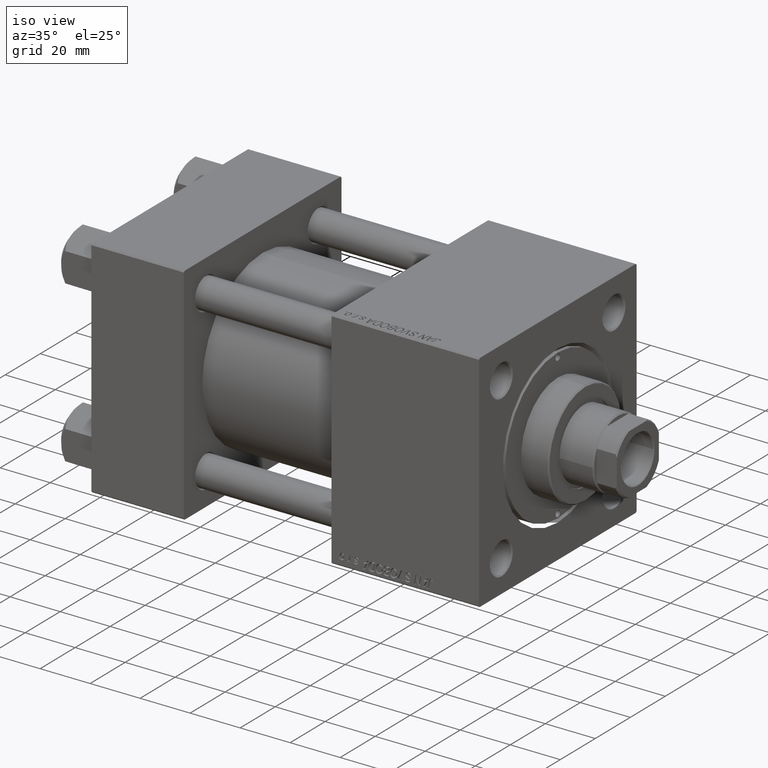
[diagram: clean part render]
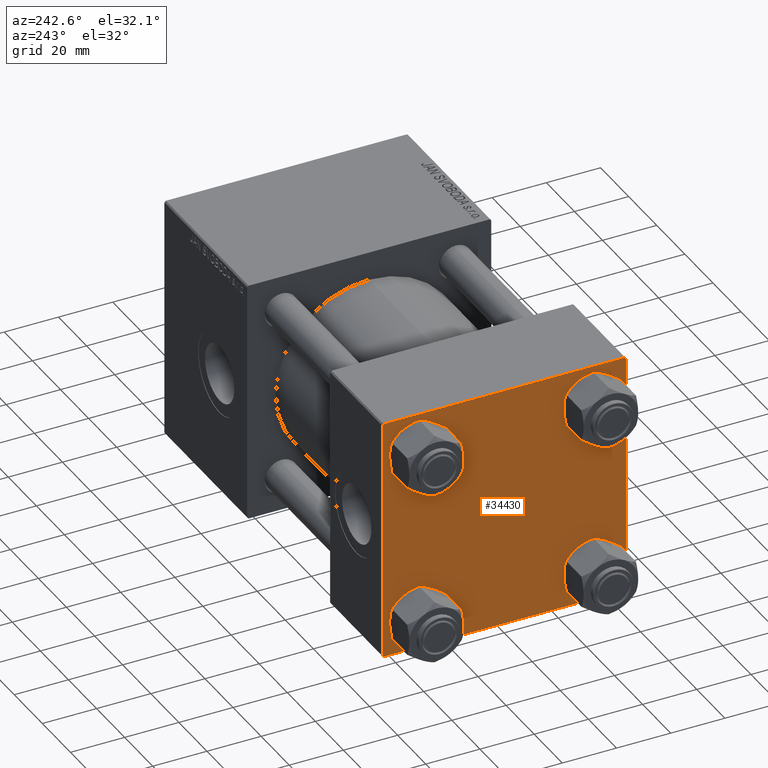
[diagram: tour spotlight — one face highlighted and labeled with its STEP entity id]
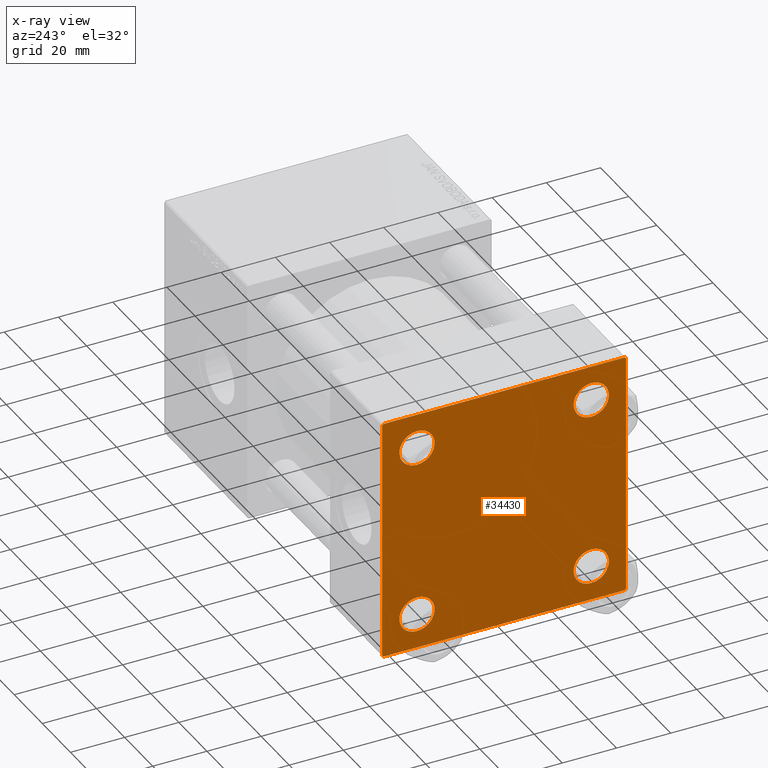
[diagram: x-ray of the same camera — body ghosted, this tour face saturated]
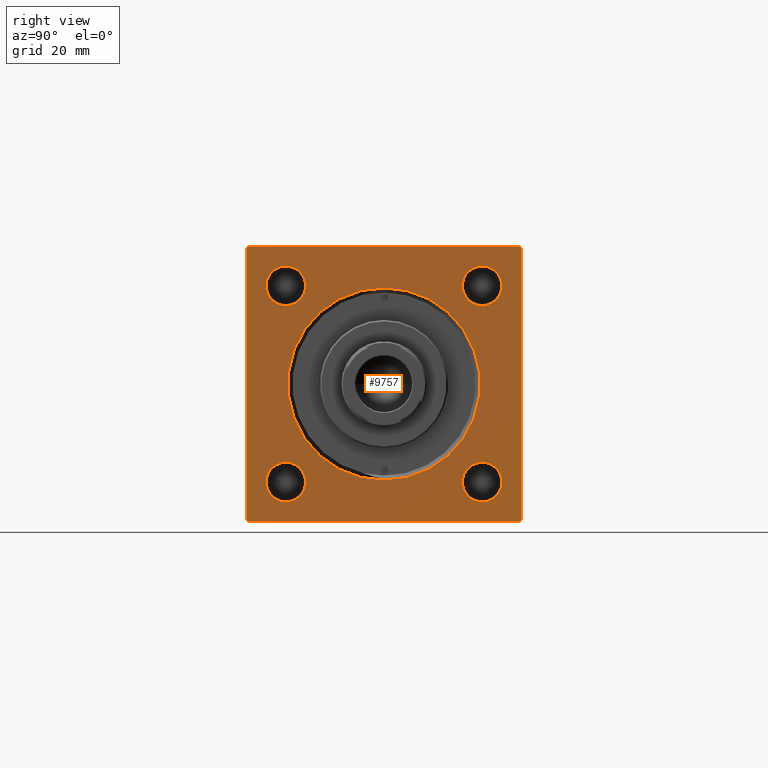
[diagram: tour spotlight — one face highlighted and labeled with its STEP entity id]
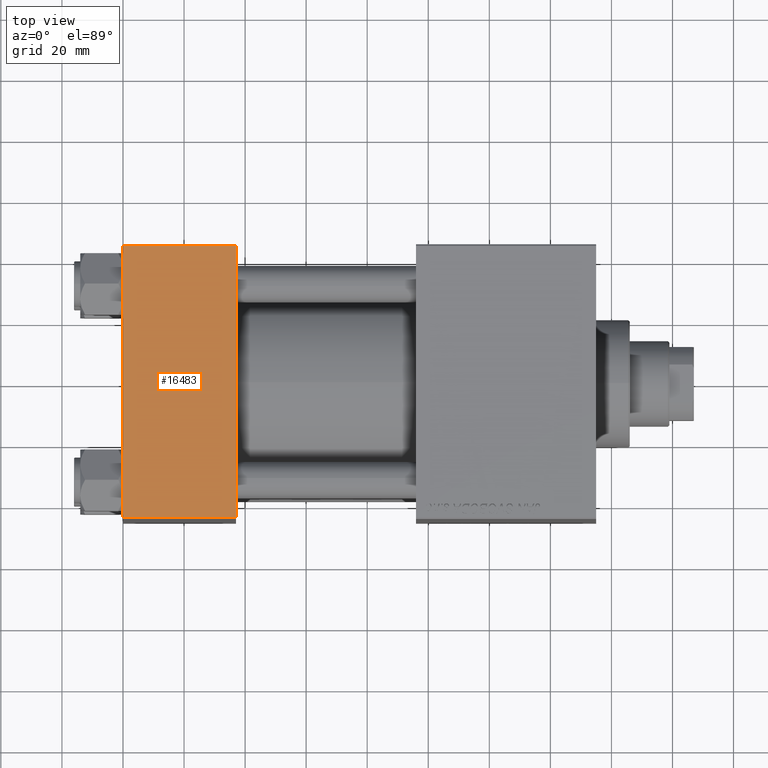
[diagram: tour spotlight — one face highlighted and labeled with its STEP entity id]
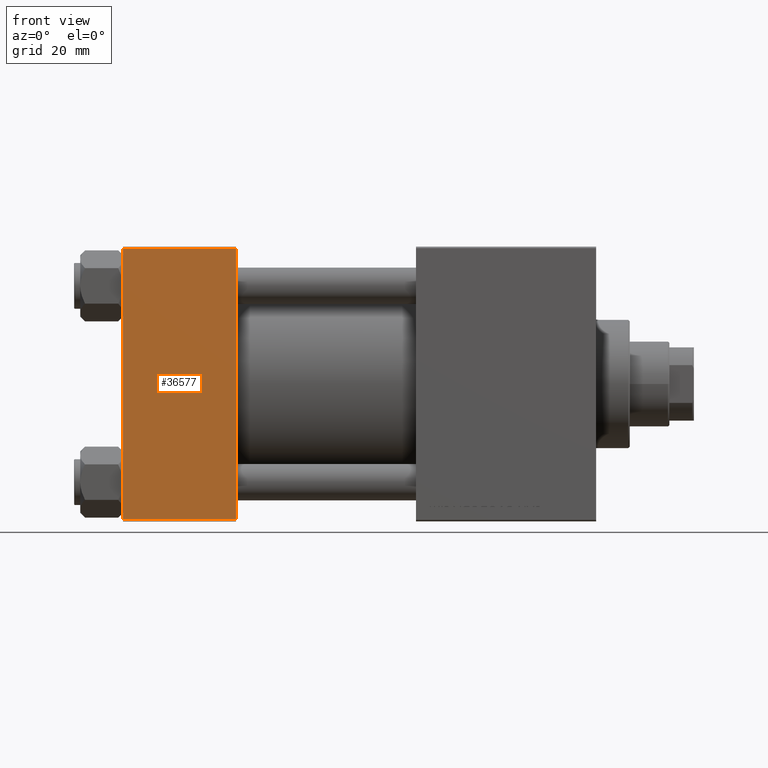
[diagram: tour spotlight — one face highlighted and labeled with its STEP entity id]
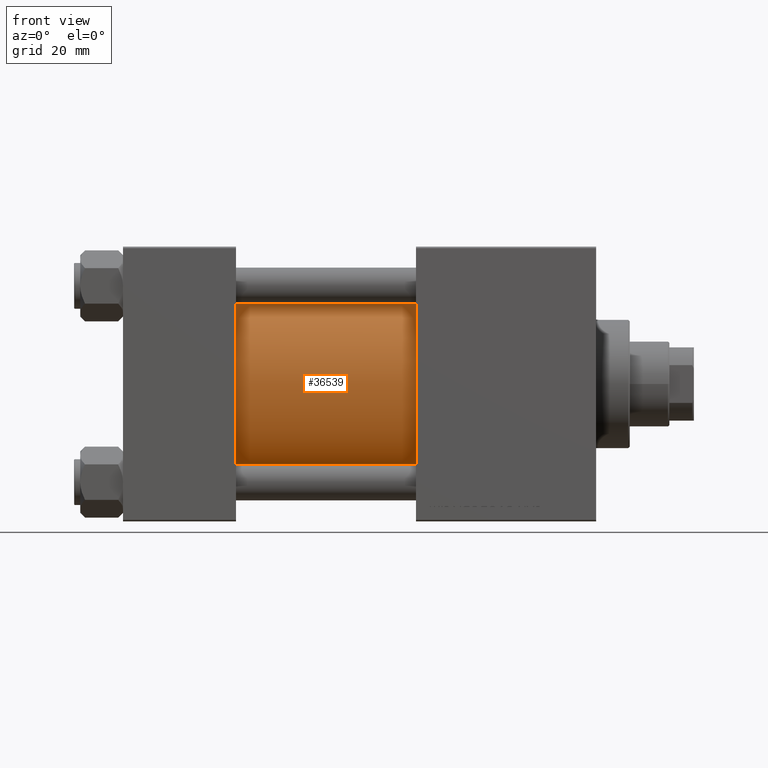
[diagram: tour spotlight — one face highlighted and labeled with its STEP entity id]
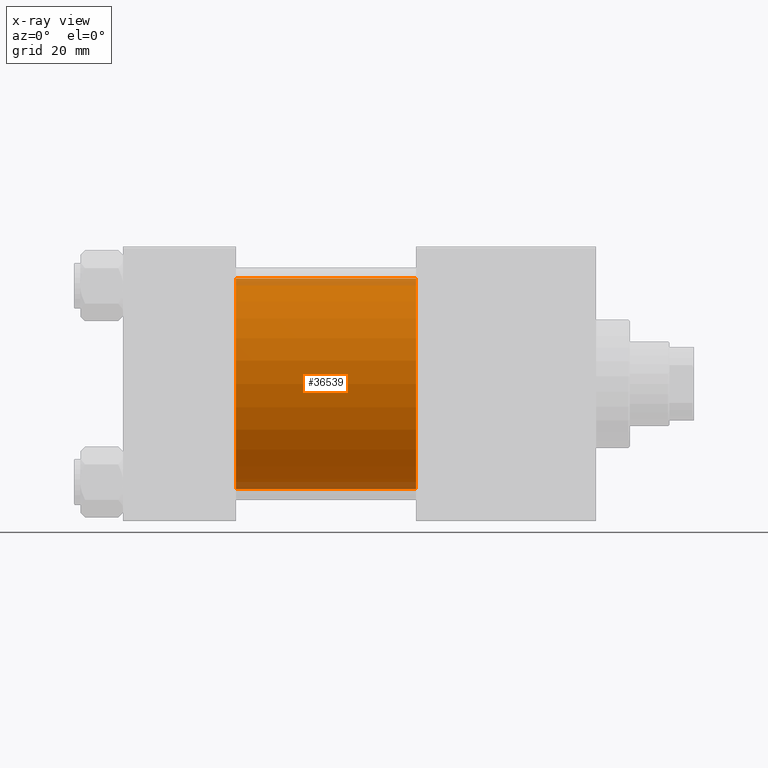
[diagram: x-ray of the same camera — body ghosted, this tour face saturated]
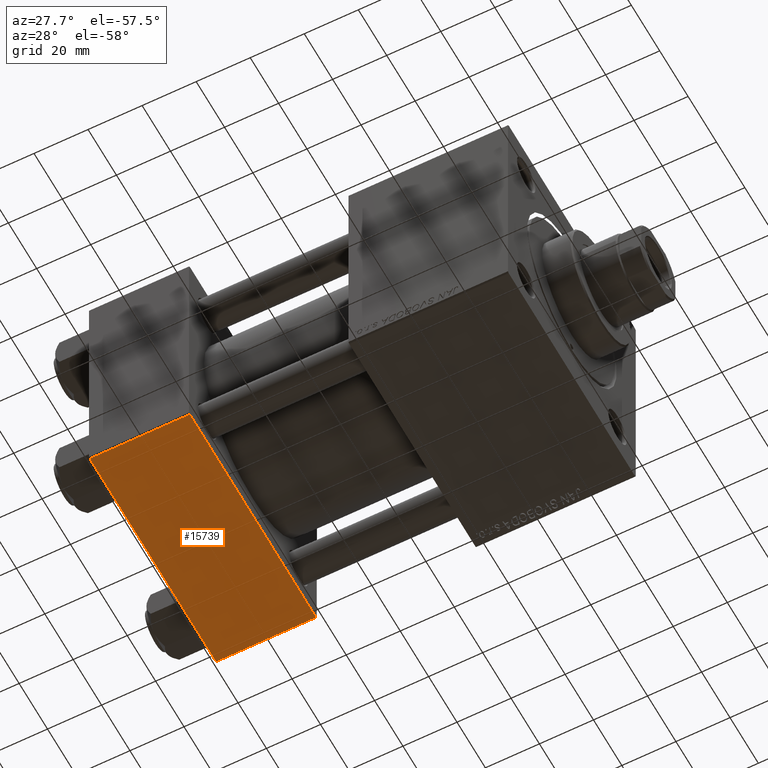
[diagram: tour spotlight — one face highlighted and labeled with its STEP entity id]
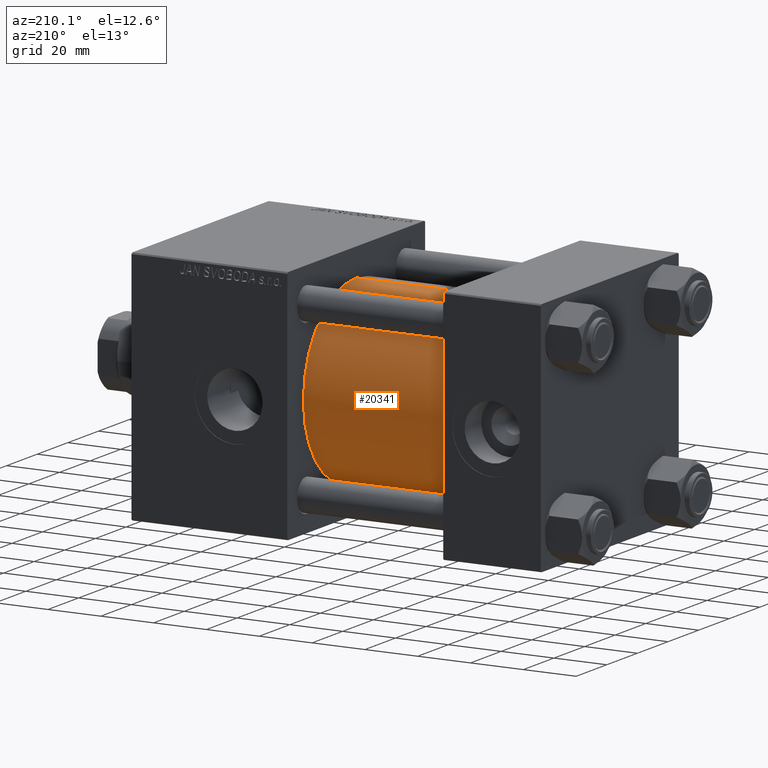
[diagram: tour spotlight — one face highlighted and labeled with its STEP entity id]
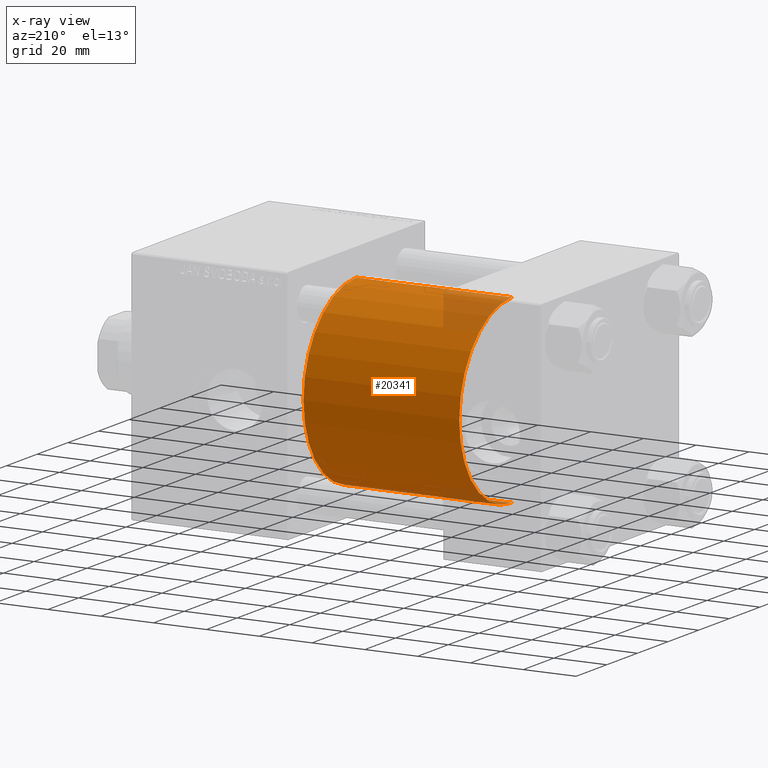
[diagram: x-ray of the same camera — body ghosted, this tour face saturated]
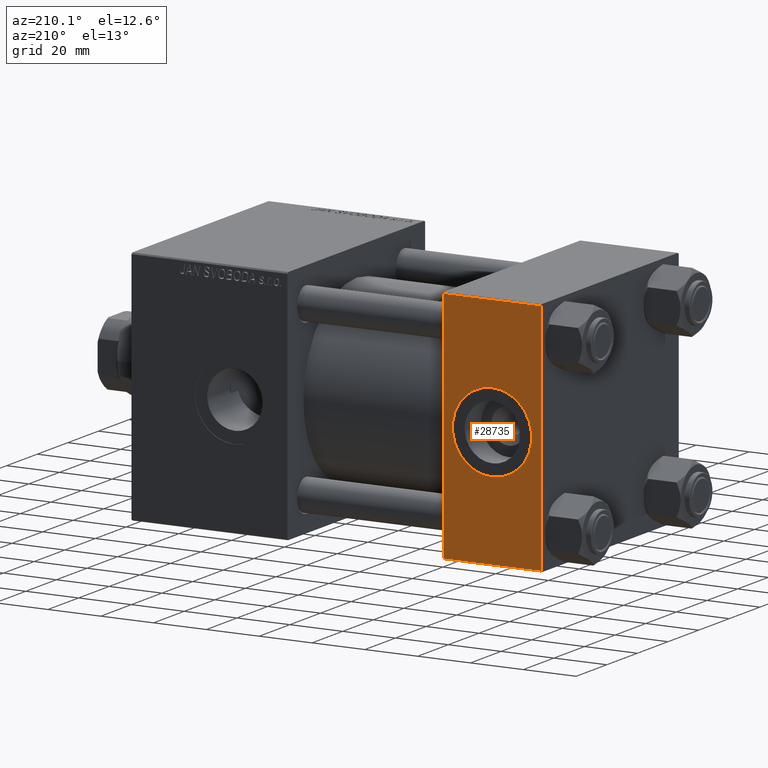
[diagram: tour spotlight — one face highlighted and labeled with its STEP entity id]
A machine part: a face-by-face anatomy tour. The part has 1155 B-rep faces; the first image is the clean iso view, then the 8 largest visible faces are spotlighted one at a time (largest first), each with its STEP entity span.

Face 1 — auxiliary view, entity #34430. An x-ray twin of the same camera follows (body ghosted, this face saturated) — the face is partly hidden behind the body. In plain terms, the highlighted planar face has unit normal (-1, 0, 0).
Definition (entity closure, byte-faithful):
#350 = CIRCLE ( 'NONE', #13330, 6.499999999999977796 ) ;
#530 = DIRECTION ( 'NONE',  ( 0.000000000000000000, 7.709882115452476934E-17, -1.000000000000000000 ) ) ;
#1009 = DIRECTION ( 'NONE',  ( 0.000000000000000000, 0.000000000000000000, 1.000000000000000000 ) ) ;
#1986 = DIRECTION ( 'NONE',  ( 0.000000000000000000, 0.000000000000000000, 1.000000000000000000 ) ) ;
#2035 = ORIENTED_EDGE ( 'NONE', *, *, #27460, .T. ) ;
#3059 = DIRECTION ( 'NONE',  ( -1.000000000000000000, 0.000000000000000000, -0.000000000000000000 ) ) ;
#3607 = EDGE_CURVE ( 'NONE', #18046, #36002, #5492, .T. ) ;
#4317 = CIRCLE ( 'NONE', #32774, 6.499999999999977796 ) ;
#4428 = VERTEX_POINT ( 'NONE', #47068 ) ;
#4663 = CARTESIAN_POINT ( 'NONE',  ( 0.000000000000000000, -45.00000000000000000, -44.49999999999995737 ) ) ;
#4747 = ORIENTED_EDGE ( 'NONE', *, *, #35121, .T. ) ;
#4823 = DIRECTION ( 'NONE',  ( 1.000000000000000000, -0.000000000000000000, 0.000000000000000000 ) ) ;
#4841 = EDGE_CURVE ( 'NONE', #33063, #45876, #41621, .T. ) ;
#5072 = DIRECTION ( 'NONE',  ( 0.000000000000000000, 0.000000000000000000, 1.000000000000000000 ) ) ;
#5492 = LINE ( 'NONE', #28424, #30434 ) ;
#5863 = CARTESIAN_POINT ( 'NONE',  ( 0.000000000000000000, 44.99999999999998579, -44.49999999999995737 ) ) ;
#6571 = CIRCLE ( 'NONE', #35045, 6.499999999999977796 ) ;
#6603 = AXIS2_PLACEMENT_3D ( 'NONE', #23504, #24005, #31644 ) ;
#6874 = FACE_BOUND ( 'NONE', #12646, .T. ) ;
#8395 = CARTESIAN_POINT ( 'NONE',  ( 0.000000000000000000, 32.14999999999999147, 32.15000000000000568 ) ) ;
#8550 = VERTEX_POINT ( 'NONE', #33020 ) ;
#9015 = ORIENTED_EDGE ( 'NONE', *, *, #16313, .T. ) ;
#10144 = CARTESIAN_POINT ( 'NONE',  ( 0.000000000000000000, 32.14999999999999147, -32.15000000000000568 ) ) ;
#10441 = FACE_BOUND ( 'NONE', #29006, .T. ) ;
#11243 = CARTESIAN_POINT ( 'NONE',  ( 0.000000000000000000, -45.00000000000000711, 45.00000000000000000 ) ) ;
#11345 = EDGE_CURVE ( 'NONE', #14311, #13397, #44419, .T. ) ;
#12053 = CARTESIAN_POINT ( 'NONE',  ( 0.000000000000000000, 44.74999999999998579, -44.74999999999998579 ) ) ;
#12646 = EDGE_LOOP ( 'NONE', ( #4747, #32186 ) ) ;
#12846 = CARTESIAN_POINT ( 'NONE',  ( 0.000000000000000000, 32.14999999999999147, 38.64999999999999147 ) ) ;
#13330 = AXIS2_PLACEMENT_3D ( 'NONE', #8395, #4823, #5072 ) ;
#13397 = VERTEX_POINT ( 'NONE', #40564 ) ;
#13505 = ORIENTED_EDGE ( 'NONE', *, *, #41323, .F. ) ;
#13955 = VECTOR ( 'NONE', #41879, 1000.000000000000000 ) ;
#14311 = VERTEX_POINT ( 'NONE', #46359 ) ;
#14781 = CARTESIAN_POINT ( 'NONE',  ( 0.000000000000000000, 0.000000000000000000, 0.000000000000000000 ) ) ;
#15038 = VERTEX_POINT ( 'NONE', #5863 ) ;
#15058 = CARTESIAN_POINT ( 'NONE',  ( 0.000000000000000000, -32.14999999999997726, -25.65000000000003411 ) ) ;
#15636 = LINE ( 'NONE', #12053, #49835 ) ;
#16111 = AXIS2_PLACEMENT_3D ( 'NONE', #34742, #30440, #38809 ) ;
#16281 = ORIENTED_EDGE ( 'NONE', *, *, #29362, .T. ) ;
#16313 = EDGE_CURVE ( 'NONE', #25687, #45167, #20984, .T. ) ;
#16429 = VECTOR ( 'NONE', #530, 1000.000000000000000 ) ;
#16434 = DIRECTION ( 'NONE',  ( 0.000000000000000000, 0.000000000000000000, 1.000000000000000000 ) ) ;
#16780 = EDGE_LOOP ( 'NONE', ( #24059, #9015 ) ) ;
#17676 = VERTEX_POINT ( 'NONE', #47857 ) ;
#17938 = LINE ( 'NONE', #25833, #13955 ) ;
#18046 = VERTEX_POINT ( 'NONE', #20232 ) ;
#18355 = PLANE ( 'NONE',  #38180 ) ;
#18956 = CARTESIAN_POINT ( 'NONE',  ( 0.000000000000000000, -32.14999999999997726, 32.15000000000001279 ) ) ;
#19372 = EDGE_CURVE ( 'NONE', #8550, #45876, #42287, .T. ) ;
#20232 = CARTESIAN_POINT ( 'NONE',  ( 0.000000000000000000, -44.49999999999995737, -45.00000000000000000 ) ) ;
#20510 = DIRECTION ( 'NONE',  ( 0.000000000000000000, 0.7071067811865474617, -0.7071067811865474617 ) ) ;
#20984 = CIRCLE ( 'NONE', #16111, 6.499999999999977796 ) ;
#22086 = LINE ( 'NONE', #41951, #43412 ) ;
#22427 = FACE_BOUND ( 'NONE', #37718, .T. ) ;
#23460 = LINE ( 'NONE', #11243, #16429 ) ;
#23504 = CARTESIAN_POINT ( 'NONE',  ( 0.000000000000000000, 32.14999999999999147, 32.15000000000000568 ) ) ;
#24005 = DIRECTION ( 'NONE',  ( 1.000000000000000000, -0.000000000000000000, 0.000000000000000000 ) ) ;
#24059 = ORIENTED_EDGE ( 'NONE', *, *, #48297, .T. ) ;
#24358 = AXIS2_PLACEMENT_3D ( 'NONE', #41348, #29639, #45179 ) ;
#24447 = DIRECTION ( 'NONE',  ( 1.000000000000000000, -0.000000000000000000, 0.000000000000000000 ) ) ;
#24899 = CARTESIAN_POINT ( 'NONE',  ( 0.000000000000000000, 44.49999999999998579, 45.00000000000001421 ) ) ;
#25111 = DIRECTION ( 'NONE',  ( 0.000000000000000000, -0.7071067811865474617, 0.7071067811865474617 ) ) ;
#25435 = DIRECTION ( 'NONE',  ( 1.000000000000000000, -0.000000000000000000, 0.000000000000000000 ) ) ;
#25519 = CIRCLE ( 'NONE', #39329, 6.499999999999977796 ) ;
#25687 = VERTEX_POINT ( 'NONE', #44320 ) ;
#25833 = CARTESIAN_POINT ( 'NONE',  ( 0.000000000000000000, 44.99999999999998579, 45.00000000000001421 ) ) ;
#27460 = EDGE_CURVE ( 'NONE', #4428, #45373, #6571, .T. ) ;
#27549 = ORIENTED_EDGE ( 'NONE', *, *, #19372, .T. ) ;
#28181 = ORIENTED_EDGE ( 'NONE', *, *, #48772, .T. ) ;
#28214 = CARTESIAN_POINT ( 'NONE',  ( 0.000000000000000000, 32.14999999999999147, -25.65000000000002700 ) ) ;
#28424 = CARTESIAN_POINT ( 'NONE',  ( 0.000000000000000000, -44.74999999999998579, -44.74999999999998579 ) ) ;
#28577 = CIRCLE ( 'NONE', #6603, 6.499999999999977796 ) ;
#29006 = EDGE_LOOP ( 'NONE', ( #16281, #35438 ) ) ;
#29298 = EDGE_CURVE ( 'NONE', #43318, #15038, #17938, .T. ) ;
#29362 = EDGE_CURVE ( 'NONE', #49003, #17676, #28577, .T. ) ;
#29639 = DIRECTION ( 'NONE',  ( 1.000000000000000000, -0.000000000000000000, 0.000000000000000000 ) ) ;
#29827 = FACE_BOUND ( 'NONE', #16780, .T. ) ;
#30238 = DIRECTION ( 'NONE',  ( 1.000000000000000000, -0.000000000000000000, 0.000000000000000000 ) ) ;
#30434 = VECTOR ( 'NONE', #25111, 1000.000000000000114 ) ;
#30440 = DIRECTION ( 'NONE',  ( 1.000000000000000000, -0.000000000000000000, 0.000000000000000000 ) ) ;
#30768 = ORIENTED_EDGE ( 'NONE', *, *, #3607, .T. ) ;
#31355 = CARTESIAN_POINT ( 'NONE',  ( 0.000000000000000000, -44.49999999999995737, 45.00000000000000000 ) ) ;
#31644 = DIRECTION ( 'NONE',  ( 0.000000000000000000, 0.000000000000000000, 1.000000000000000000 ) ) ;
#31687 = ORIENTED_EDGE ( 'NONE', *, *, #41956, .T. ) ;
#31805 = ORIENTED_EDGE ( 'NONE', *, *, #4841, .F. ) ;
#32186 = ORIENTED_EDGE ( 'NONE', *, *, #11345, .T. ) ;
#32460 = LINE ( 'NONE', #36034, #45867 ) ;
#32774 = AXIS2_PLACEMENT_3D ( 'NONE', #47648, #24447, #1009 ) ;
#33020 = CARTESIAN_POINT ( 'NONE',  ( 0.000000000000000000, -45.00000000000000711, 44.49999999999997158 ) ) ;
#33063 = VERTEX_POINT ( 'NONE', #24899 ) ;
#34430 = ADVANCED_FACE ( 'NONE', ( #6874, #29827, #22427, #10441, #44857 ), #18355, .T. ) ;
#34641 = DIRECTION ( 'NONE',  ( -0.000000000000000000, 0.7071067811865425767, 0.7071067811865524577 ) ) ;
#34742 = CARTESIAN_POINT ( 'NONE',  ( 0.000000000000000000, -32.14999999999997726, -32.15000000000001279 ) ) ;
#35045 = AXIS2_PLACEMENT_3D ( 'NONE', #10144, #25435, #1986 ) ;
#35121 = EDGE_CURVE ( 'NONE', #13397, #14311, #50406, .T. ) ;
#35438 = ORIENTED_EDGE ( 'NONE', *, *, #47505, .T. ) ;
#36002 = VERTEX_POINT ( 'NONE', #4663 ) ;
#36034 = CARTESIAN_POINT ( 'NONE',  ( 0.000000000000000000, 44.74999999999999289, 44.74999999999999289 ) ) ;
#36129 = CARTESIAN_POINT ( 'NONE',  ( 0.000000000000000000, 44.99999999999998579, 44.50000000000001421 ) ) ;
#37616 = DIRECTION ( 'NONE',  ( 0.000000000000000000, -1.000000000000000000, -1.541976423090495633E-16 ) ) ;
#37718 = EDGE_LOOP ( 'NONE', ( #49773, #2035 ) ) ;
#37791 = CARTESIAN_POINT ( 'NONE',  ( 0.000000000000000000, 44.99999999999998579, 45.00000000000001421 ) ) ;
#37805 = DIRECTION ( 'NONE',  ( 0.000000000000000000, 0.000000000000000000, 1.000000000000000000 ) ) ;
#38180 = AXIS2_PLACEMENT_3D ( 'NONE', #14781, #3059, #45368 ) ;
#38277 = VERTEX_POINT ( 'NONE', #39806 ) ;
#38497 = ORIENTED_EDGE ( 'NONE', *, *, #29298, .T. ) ;
#38809 = DIRECTION ( 'NONE',  ( 0.000000000000000000, 0.000000000000000000, 1.000000000000000000 ) ) ;
#39329 = AXIS2_PLACEMENT_3D ( 'NONE', #49596, #30238, #16434 ) ;
#39806 = CARTESIAN_POINT ( 'NONE',  ( 0.000000000000000000, 44.49999999999998579, -44.99999999999998579 ) ) ;
#40331 = AXIS2_PLACEMENT_3D ( 'NONE', #18956, #49787, #37805 ) ;
#40564 = CARTESIAN_POINT ( 'NONE',  ( 0.000000000000000000, -32.14999999999997726, 38.65000000000003411 ) ) ;
#41323 = EDGE_CURVE ( 'NONE', #8550, #36002, #23460, .T. ) ;
#41348 = CARTESIAN_POINT ( 'NONE',  ( 0.000000000000000000, -32.14999999999997726, 32.15000000000001279 ) ) ;
#41621 = LINE ( 'NONE', #37791, #45925 ) ;
#41879 = DIRECTION ( 'NONE',  ( 0.000000000000000000, 0.000000000000000000, -1.000000000000000000 ) ) ;
#41951 = CARTESIAN_POINT ( 'NONE',  ( 0.000000000000000000, 44.99999999999998579, -44.99999999999998579 ) ) ;
#41956 = EDGE_CURVE ( 'NONE', #15038, #38277, #15636, .T. ) ;
#42287 = LINE ( 'NONE', #49696, #43020 ) ;
#43020 = VECTOR ( 'NONE', #34641, 1000.000000000000114 ) ;
#43318 = VERTEX_POINT ( 'NONE', #36129 ) ;
#43392 = DIRECTION ( 'NONE',  ( -0.000000000000000000, -0.7071067811865474617, -0.7071067811865474617 ) ) ;
#43412 = VECTOR ( 'NONE', #37616, 1000.000000000000000 ) ;
#44320 = CARTESIAN_POINT ( 'NONE',  ( 0.000000000000000000, -32.14999999999997726, -38.64999999999999147 ) ) ;
#44419 = CIRCLE ( 'NONE', #40331, 6.500000000000019540 ) ;
#44857 = FACE_OUTER_BOUND ( 'NONE', #46132, .T. ) ;
#45167 = VERTEX_POINT ( 'NONE', #15058 ) ;
#45179 = DIRECTION ( 'NONE',  ( 0.000000000000000000, 0.000000000000000000, 1.000000000000000000 ) ) ;
#45368 = DIRECTION ( 'NONE',  ( -0.000000000000000000, 0.000000000000000000, 1.000000000000000000 ) ) ;
#45373 = VERTEX_POINT ( 'NONE', #28214 ) ;
#45867 = VECTOR ( 'NONE', #20510, 1000.000000000000114 ) ;
#45876 = VERTEX_POINT ( 'NONE', #31355 ) ;
#45925 = VECTOR ( 'NONE', #49519, 1000.000000000000000 ) ;
#46132 = EDGE_LOOP ( 'NONE', ( #38497, #31687, #28181, #30768, #13505, #27549, #31805, #48118 ) ) ;
#46359 = CARTESIAN_POINT ( 'NONE',  ( 0.000000000000000000, -32.14999999999997726, 25.64999999999999147 ) ) ;
#47068 = CARTESIAN_POINT ( 'NONE',  ( 0.000000000000000000, 32.14999999999999147, -38.64999999999998437 ) ) ;
#47505 = EDGE_CURVE ( 'NONE', #17676, #49003, #350, .T. ) ;
#47648 = CARTESIAN_POINT ( 'NONE',  ( 0.000000000000000000, -32.14999999999997726, -32.15000000000001279 ) ) ;
#47857 = CARTESIAN_POINT ( 'NONE',  ( 0.000000000000000000, 32.14999999999999147, 25.65000000000002700 ) ) ;
#48118 = ORIENTED_EDGE ( 'NONE', *, *, #48994, .T. ) ;
#48297 = EDGE_CURVE ( 'NONE', #45167, #25687, #4317, .T. ) ;
#48772 = EDGE_CURVE ( 'NONE', #38277, #18046, #22086, .T. ) ;
#48803 = EDGE_CURVE ( 'NONE', #45373, #4428, #25519, .T. ) ;
#48994 = EDGE_CURVE ( 'NONE', #33063, #43318, #32460, .T. ) ;
#49003 = VERTEX_POINT ( 'NONE', #12846 ) ;
#49519 = DIRECTION ( 'NONE',  ( 0.000000000000000000, -1.000000000000000000, -1.541976423090495387E-16 ) ) ;
#49596 = CARTESIAN_POINT ( 'NONE',  ( 0.000000000000000000, 32.14999999999999147, -32.15000000000000568 ) ) ;
#49696 = CARTESIAN_POINT ( 'NONE',  ( -0.000000000000000000, -44.75000000000029843, 44.74999999999967315 ) ) ;
#49773 = ORIENTED_EDGE ( 'NONE', *, *, #48803, .T. ) ;
#49787 = DIRECTION ( 'NONE',  ( 1.000000000000000000, -0.000000000000000000, 0.000000000000000000 ) ) ;
#49835 = VECTOR ( 'NONE', #43392, 1000.000000000000114 ) ;
#50406 = CIRCLE ( 'NONE', #24358, 6.500000000000019540 ) ;

Face 2 — right view, entity #9757. In plain terms, the highlighted planar face has unit normal (-1, 0, 0).
Definition (entity closure, byte-faithful):
#564 = DIRECTION ( 'NONE',  ( -1.000000000000000000, -0.000000000000000000, -0.000000000000000000 ) ) ;
#581 = DIRECTION ( 'NONE',  ( 0.000000000000000000, -0.7071067811865474617, 0.7071067811865474617 ) ) ;
#609 = ORIENTED_EDGE ( 'NONE', *, *, #33079, .T. ) ;
#1350 = CARTESIAN_POINT ( 'NONE',  ( 155.0000000000000000, -32.14999999999999147, 32.14999999999999147 ) ) ;
#2987 = VERTEX_POINT ( 'NONE', #17342 ) ;
#3400 = LINE ( 'NONE', #30667, #43927 ) ;
#3795 = ORIENTED_EDGE ( 'NONE', *, *, #15768, .F. ) ;
#4308 = CARTESIAN_POINT ( 'NONE',  ( 155.0000000000000000, 0.000000000000000000, 0.000000000000000000 ) ) ;
#4549 = CIRCLE ( 'NONE', #15974, 6.500000000000033751 ) ;
#4948 = LINE ( 'NONE', #6454, #43061 ) ;
#5546 = VECTOR ( 'NONE', #45113, 1000.000000000000114 ) ;
#5607 = CARTESIAN_POINT ( 'NONE',  ( 155.0000000000000000, -45.00000000000000000, 44.49999999999995737 ) ) ;
#5626 = AXIS2_PLACEMENT_3D ( 'NONE', #8477, #43383, #40557 ) ;
#5694 = VECTOR ( 'NONE', #30045, 1000.000000000000000 ) ;
#5893 = DIRECTION ( 'NONE',  ( -1.000000000000000000, -0.000000000000000000, -0.000000000000000000 ) ) ;
#5918 = ORIENTED_EDGE ( 'NONE', *, *, #40810, .T. ) ;
#6056 = ORIENTED_EDGE ( 'NONE', *, *, #48646, .T. ) ;
#6404 = DIRECTION ( 'NONE',  ( -1.000000000000000000, -0.000000000000000000, -0.000000000000000000 ) ) ;
#6454 = CARTESIAN_POINT ( 'NONE',  ( 155.0000000000000000, 45.00000000000001421, -45.00000000000000000 ) ) ;
#6593 = LINE ( 'NONE', #22403, #5694 ) ;
#6769 = CARTESIAN_POINT ( 'NONE',  ( 155.0000000000000000, -32.14999999999999147, 32.14999999999999147 ) ) ;
#6829 = EDGE_LOOP ( 'NONE', ( #25221, #40569 ) ) ;
#7273 = VECTOR ( 'NONE', #36465, 1000.000000000000114 ) ;
#7596 = FACE_BOUND ( 'NONE', #39200, .T. ) ;
#7656 = AXIS2_PLACEMENT_3D ( 'NONE', #4308, #16034, #27747 ) ;
#7971 = CARTESIAN_POINT ( 'NONE',  ( 155.0000000000000000, 44.49999999999998579, 45.00000000000000000 ) ) ;
#8107 = VERTEX_POINT ( 'NONE', #44940 ) ;
#8477 = CARTESIAN_POINT ( 'NONE',  ( 155.0000000000000000, -32.15000000000001279, -32.15000000000000568 ) ) ;
#9182 = CIRCLE ( 'NONE', #37666, 31.50000000000000000 ) ;
#9214 = LINE ( 'NONE', #20938, #7273 ) ;
#9272 = DIRECTION ( 'NONE',  ( 0.000000000000000000, -1.000000000000000000, 0.000000000000000000 ) ) ;
#9644 = LINE ( 'NONE', #25451, #45295 ) ;
#9757 = ADVANCED_FACE ( 'NONE', ( #14747, #7596, #50400, #11172, #30793, #42498 ), #33851, .F. ) ;
#10010 = DIRECTION ( 'NONE',  ( 0.000000000000000000, 0.000000000000000000, 1.000000000000000000 ) ) ;
#10501 = ORIENTED_EDGE ( 'NONE', *, *, #31549, .T. ) ;
#10593 = DIRECTION ( 'NONE',  ( -1.000000000000000000, -0.000000000000000000, -0.000000000000000000 ) ) ;
#11169 = VECTOR ( 'NONE', #47695, 1000.000000000000000 ) ;
#11172 = FACE_BOUND ( 'NONE', #38131, .T. ) ;
#11200 = ORIENTED_EDGE ( 'NONE', *, *, #31210, .F. ) ;
#11376 = ORIENTED_EDGE ( 'NONE', *, *, #50320, .T. ) ;
#11433 = VERTEX_POINT ( 'NONE', #36159 ) ;
#11546 = AXIS2_PLACEMENT_3D ( 'NONE', #1350, #13832, #10010 ) ;
#12322 = EDGE_CURVE ( 'NONE', #45362, #49634, #47470, .T. ) ;
#12508 = VERTEX_POINT ( 'NONE', #28594 ) ;
#12588 = EDGE_CURVE ( 'NONE', #45684, #48099, #4549, .T. ) ;
#12665 = DIRECTION ( 'NONE',  ( -1.000000000000000000, -0.000000000000000000, -0.000000000000000000 ) ) ;
#13525 = EDGE_CURVE ( 'NONE', #49634, #28240, #9644, .T. ) ;
#13704 = EDGE_LOOP ( 'NONE', ( #49011, #40283 ) ) ;
#13832 = DIRECTION ( 'NONE',  ( -1.000000000000000000, -0.000000000000000000, -0.000000000000000000 ) ) ;
#14747 = FACE_BOUND ( 'NONE', #13704, .T. ) ;
#14820 = CARTESIAN_POINT ( 'NONE',  ( 155.0000000000000000, -32.15000000000001279, -32.15000000000000568 ) ) ;
#14875 = EDGE_CURVE ( 'NONE', #11433, #29702, #33090, .T. ) ;
#15521 = CARTESIAN_POINT ( 'NONE',  ( 155.0000000000000000, 44.49999999999998579, 45.00000000000000000 ) ) ;
#15768 = EDGE_CURVE ( 'NONE', #45362, #17521, #32137, .T. ) ;
#15898 = VERTEX_POINT ( 'NONE', #19369 ) ;
#15974 = AXIS2_PLACEMENT_3D ( 'NONE', #14820, #6404, #42076 ) ;
#16034 = DIRECTION ( 'NONE',  ( -1.000000000000000000, -0.000000000000000000, -0.000000000000000000 ) ) ;
#16073 = CARTESIAN_POINT ( 'NONE',  ( 155.0000000000000000, 0.000000000000000000, -31.50000000000000000 ) ) ;
#16495 = CARTESIAN_POINT ( 'NONE',  ( 155.0000000000000000, 0.000000000000000000, 0.000000000000000000 ) ) ;
#16644 = VERTEX_POINT ( 'NONE', #16073 ) ;
#17232 = CARTESIAN_POINT ( 'NONE',  ( 155.0000000000000000, -45.00000000000000000, 44.49999999999995737 ) ) ;
#17271 = CARTESIAN_POINT ( 'NONE',  ( 155.0000000000000000, -32.14999999999999147, 25.64999999999995595 ) ) ;
#17342 = CARTESIAN_POINT ( 'NONE',  ( 155.0000000000000000, 3.857637417314162689E-15, 31.50000000000000000 ) ) ;
#17456 = EDGE_CURVE ( 'NONE', #28240, #47849, #36440, .T. ) ;
#17521 = VERTEX_POINT ( 'NONE', #25236 ) ;
#17638 = ORIENTED_EDGE ( 'NONE', *, *, #13525, .T. ) ;
#17736 = CARTESIAN_POINT ( 'NONE',  ( 155.0000000000000000, -44.99999999999999289, -44.49999999999991473 ) ) ;
#18325 = DIRECTION ( 'NONE',  ( -0.000000000000000000, 0.000000000000000000, 1.000000000000000000 ) ) ;
#18831 = CARTESIAN_POINT ( 'NONE',  ( 155.0000000000000000, 0.000000000000000000, 0.000000000000000000 ) ) ;
#19081 = DIRECTION ( 'NONE',  ( -1.000000000000000000, 0.000000000000000000, -0.000000000000000000 ) ) ;
#19369 = CARTESIAN_POINT ( 'NONE',  ( 155.0000000000000000, -32.14999999999999147, 38.65000000000002700 ) ) ;
#19535 = VERTEX_POINT ( 'NONE', #17271 ) ;
#19918 = CARTESIAN_POINT ( 'NONE',  ( 155.0000000000000000, 32.14999999999999147, -32.15000000000000568 ) ) ;
#20825 = CARTESIAN_POINT ( 'NONE',  ( 155.0000000000000000, 45.00000000000001421, 44.49999999999997158 ) ) ;
#20828 = DIRECTION ( 'NONE',  ( 0.000000000000000000, 0.000000000000000000, 1.000000000000000000 ) ) ;
#20938 = CARTESIAN_POINT ( 'NONE',  ( 155.0000000000000000, 45.00000000000001421, -44.50000000000000000 ) ) ;
#21120 = CIRCLE ( 'NONE', #43888, 6.500000000000026645 ) ;
#21372 = VERTEX_POINT ( 'NONE', #49212 ) ;
#21457 = DIRECTION ( 'NONE',  ( 0.000000000000000000, 0.000000000000000000, 1.000000000000000000 ) ) ;
#22403 = CARTESIAN_POINT ( 'NONE',  ( 155.0000000000000000, -44.49999999999992895, -45.00000000000000000 ) ) ;
#23589 = EDGE_CURVE ( 'NONE', #48099, #45684, #36527, .T. ) ;
#23730 = DIRECTION ( 'NONE',  ( 0.000000000000000000, 0.000000000000000000, 1.000000000000000000 ) ) ;
#24212 = EDGE_LOOP ( 'NONE', ( #6056, #11376 ) ) ;
#24764 = EDGE_CURVE ( 'NONE', #12508, #8107, #21120, .T. ) ;
#24930 = ORIENTED_EDGE ( 'NONE', *, *, #17456, .T. ) ;
#25221 = ORIENTED_EDGE ( 'NONE', *, *, #23589, .T. ) ;
#25236 = CARTESIAN_POINT ( 'NONE',  ( 155.0000000000000000, 45.00000000000001421, -44.49999999999997158 ) ) ;
#25451 = CARTESIAN_POINT ( 'NONE',  ( 155.0000000000000000, 45.00000000000001421, 45.00000000000000000 ) ) ;
#27747 = DIRECTION ( 'NONE',  ( 0.000000000000000000, 0.000000000000000000, 1.000000000000000000 ) ) ;
#27928 = VERTEX_POINT ( 'NONE', #17736 ) ;
#28037 = EDGE_CURVE ( 'NONE', #15898, #19535, #47283, .T. ) ;
#28066 = CARTESIAN_POINT ( 'NONE',  ( 155.0000000000000000, 45.00000000000001421, 45.00000000000000000 ) ) ;
#28240 = VERTEX_POINT ( 'NONE', #39335 ) ;
#28594 = CARTESIAN_POINT ( 'NONE',  ( 155.0000000000000000, 32.14999999999999147, 25.64999999999997726 ) ) ;
#29277 = DIRECTION ( 'NONE',  ( 0.000000000000000000, -1.000000000000000000, -1.541976423090495140E-16 ) ) ;
#29278 = CARTESIAN_POINT ( 'NONE',  ( 155.0000000000000000, 32.14999999999999147, -38.65000000000004832 ) ) ;
#29702 = VERTEX_POINT ( 'NONE', #29278 ) ;
#30045 = DIRECTION ( 'NONE',  ( 0.000000000000000000, 0.7071067811865524577, -0.7071067811865426878 ) ) ;
#30082 = EDGE_CURVE ( 'NONE', #8107, #12508, #45476, .T. ) ;
#30667 = CARTESIAN_POINT ( 'NONE',  ( 155.0000000000000000, -45.00000000000000000, 44.99999999999998579 ) ) ;
#30793 = FACE_BOUND ( 'NONE', #24212, .T. ) ;
#31210 = EDGE_CURVE ( 'NONE', #41848, #21372, #4948, .T. ) ;
#31327 = ORIENTED_EDGE ( 'NONE', *, *, #32753, .T. ) ;
#31549 = EDGE_CURVE ( 'NONE', #41848, #17521, #9214, .T. ) ;
#31643 = DIRECTION ( 'NONE',  ( 0.000000000000000000, 0.000000000000000000, 1.000000000000000000 ) ) ;
#32137 = LINE ( 'NONE', #28066, #11169 ) ;
#32707 = CARTESIAN_POINT ( 'NONE',  ( 155.0000000000000000, -32.15000000000001279, -38.65000000000004832 ) ) ;
#32753 = EDGE_CURVE ( 'NONE', #27928, #21372, #6593, .T. ) ;
#32906 = CARTESIAN_POINT ( 'NONE',  ( 155.0000000000000000, 32.14999999999999147, 32.15000000000000568 ) ) ;
#32949 = AXIS2_PLACEMENT_3D ( 'NONE', #18831, #19081, #18325 ) ;
#33079 = EDGE_CURVE ( 'NONE', #29702, #11433, #48857, .T. ) ;
#33090 = CIRCLE ( 'NONE', #37164, 6.500000000000033751 ) ;
#33851 = PLANE ( 'NONE',  #32949 ) ;
#34749 = CARTESIAN_POINT ( 'NONE',  ( 155.0000000000000000, 44.50000000000001421, -45.00000000000000000 ) ) ;
#34975 = AXIS2_PLACEMENT_3D ( 'NONE', #40431, #40185, #20828 ) ;
#35145 = EDGE_LOOP ( 'NONE', ( #41473, #31327, #11200, #10501, #3795, #44489, #17638, #24930 ) ) ;
#35704 = ORIENTED_EDGE ( 'NONE', *, *, #28037, .T. ) ;
#36159 = CARTESIAN_POINT ( 'NONE',  ( 155.0000000000000000, 32.14999999999999147, -25.64999999999997016 ) ) ;
#36262 = EDGE_CURVE ( 'NONE', #47849, #27928, #3400, .T. ) ;
#36440 = LINE ( 'NONE', #5607, #5546 ) ;
#36465 = DIRECTION ( 'NONE',  ( -0.000000000000000000, 0.7071067811865474617, 0.7071067811865474617 ) ) ;
#36527 = CIRCLE ( 'NONE', #5626, 6.500000000000033751 ) ;
#37164 = AXIS2_PLACEMENT_3D ( 'NONE', #19918, #43088, #23730 ) ;
#37666 = AXIS2_PLACEMENT_3D ( 'NONE', #16495, #12665, #43500 ) ;
#38131 = EDGE_LOOP ( 'NONE', ( #609, #48667 ) ) ;
#39183 = CIRCLE ( 'NONE', #11546, 6.500000000000033751 ) ;
#39200 = EDGE_LOOP ( 'NONE', ( #5918, #35704 ) ) ;
#39335 = CARTESIAN_POINT ( 'NONE',  ( 155.0000000000000000, -44.49999999999994316, 44.99999999999998579 ) ) ;
#39778 = AXIS2_PLACEMENT_3D ( 'NONE', #32906, #5893, #21457 ) ;
#40185 = DIRECTION ( 'NONE',  ( -1.000000000000000000, -0.000000000000000000, -0.000000000000000000 ) ) ;
#40283 = ORIENTED_EDGE ( 'NONE', *, *, #30082, .T. ) ;
#40431 = CARTESIAN_POINT ( 'NONE',  ( 155.0000000000000000, 32.14999999999999147, -32.15000000000000568 ) ) ;
#40557 = DIRECTION ( 'NONE',  ( 0.000000000000000000, 0.000000000000000000, 1.000000000000000000 ) ) ;
#40569 = ORIENTED_EDGE ( 'NONE', *, *, #12588, .T. ) ;
#40810 = EDGE_CURVE ( 'NONE', #19535, #15898, #39183, .T. ) ;
#41473 = ORIENTED_EDGE ( 'NONE', *, *, #36262, .T. ) ;
#41848 = VERTEX_POINT ( 'NONE', #34749 ) ;
#42076 = DIRECTION ( 'NONE',  ( 0.000000000000000000, 0.000000000000000000, 1.000000000000000000 ) ) ;
#42498 = FACE_OUTER_BOUND ( 'NONE', #35145, .T. ) ;
#42646 = CIRCLE ( 'NONE', #7656, 31.50000000000000000 ) ;
#43061 = VECTOR ( 'NONE', #9272, 1000.000000000000000 ) ;
#43088 = DIRECTION ( 'NONE',  ( -1.000000000000000000, -0.000000000000000000, -0.000000000000000000 ) ) ;
#43383 = DIRECTION ( 'NONE',  ( -1.000000000000000000, -0.000000000000000000, -0.000000000000000000 ) ) ;
#43444 = CARTESIAN_POINT ( 'NONE',  ( 155.0000000000000000, -32.15000000000001279, -25.64999999999997016 ) ) ;
#43500 = DIRECTION ( 'NONE',  ( 0.000000000000000000, 0.000000000000000000, 1.000000000000000000 ) ) ;
#43870 = CARTESIAN_POINT ( 'NONE',  ( 155.0000000000000000, 32.14999999999999147, 32.15000000000000568 ) ) ;
#43888 = AXIS2_PLACEMENT_3D ( 'NONE', #43870, #564, #31643 ) ;
#43927 = VECTOR ( 'NONE', #46203, 1000.000000000000000 ) ;
#44453 = VECTOR ( 'NONE', #581, 1000.000000000000114 ) ;
#44489 = ORIENTED_EDGE ( 'NONE', *, *, #12322, .T. ) ;
#44940 = CARTESIAN_POINT ( 'NONE',  ( 155.0000000000000000, 32.14999999999999147, 38.65000000000003411 ) ) ;
#45113 = DIRECTION ( 'NONE',  ( -0.000000000000000000, -0.7071067811865474617, -0.7071067811865474617 ) ) ;
#45295 = VECTOR ( 'NONE', #29277, 1000.000000000000000 ) ;
#45362 = VERTEX_POINT ( 'NONE', #20825 ) ;
#45476 = CIRCLE ( 'NONE', #39778, 6.500000000000026645 ) ;
#45654 = AXIS2_PLACEMENT_3D ( 'NONE', #6769, #10593, #45760 ) ;
#45684 = VERTEX_POINT ( 'NONE', #43444 ) ;
#45760 = DIRECTION ( 'NONE',  ( 0.000000000000000000, 0.000000000000000000, 1.000000000000000000 ) ) ;
#46203 = DIRECTION ( 'NONE',  ( 0.000000000000000000, 7.709882115452478166E-17, -1.000000000000000000 ) ) ;
#47283 = CIRCLE ( 'NONE', #45654, 6.500000000000033751 ) ;
#47470 = LINE ( 'NONE', #7971, #44453 ) ;
#47695 = DIRECTION ( 'NONE',  ( 0.000000000000000000, 0.000000000000000000, -1.000000000000000000 ) ) ;
#47849 = VERTEX_POINT ( 'NONE', #17232 ) ;
#48099 = VERTEX_POINT ( 'NONE', #32707 ) ;
#48646 = EDGE_CURVE ( 'NONE', #16644, #2987, #9182, .T. ) ;
#48667 = ORIENTED_EDGE ( 'NONE', *, *, #14875, .T. ) ;
#48857 = CIRCLE ( 'NONE', #34975, 6.500000000000033751 ) ;
#49011 = ORIENTED_EDGE ( 'NONE', *, *, #24764, .T. ) ;
#49212 = CARTESIAN_POINT ( 'NONE',  ( 155.0000000000000000, -44.49999999999990052, -45.00000000000000000 ) ) ;
#49634 = VERTEX_POINT ( 'NONE', #15521 ) ;
#50320 = EDGE_CURVE ( 'NONE', #2987, #16644, #42646, .T. ) ;
#50400 = FACE_BOUND ( 'NONE', #6829, .T. ) ;

Face 3 — top view, entity #16483. In plain terms, the highlighted planar face has unit normal (0, 0, -1).
Definition (entity closure, byte-faithful):
#434 = ORIENTED_EDGE ( 'NONE', *, *, #8176, .T. ) ;
#1785 = EDGE_LOOP ( 'NONE', ( #15712, #434, #4005, #39400 ) ) ;
#2088 = CARTESIAN_POINT ( 'NONE',  ( 37.00000000000000000, 44.49999999999998579, 45.00000000000001421 ) ) ;
#3394 = LINE ( 'NONE', #50019, #29776 ) ;
#4005 = ORIENTED_EDGE ( 'NONE', *, *, #46687, .F. ) ;
#4692 = AXIS2_PLACEMENT_3D ( 'NONE', #5158, #20712, #16885 ) ;
#4841 = EDGE_CURVE ( 'NONE', #33063, #45876, #41621, .T. ) ;
#5158 = CARTESIAN_POINT ( 'NONE',  ( 37.00000000000000000, 44.99999999999998579, 45.00000000000001421 ) ) ;
#8029 = LINE ( 'NONE', #8532, #49341 ) ;
#8176 = EDGE_CURVE ( 'NONE', #45876, #46296, #3394, .T. ) ;
#8532 = CARTESIAN_POINT ( 'NONE',  ( 0.000000000000000000, 44.49999999999998579, 45.00000000000001421 ) ) ;
#11524 = DIRECTION ( 'NONE',  ( 1.000000000000000000, 0.000000000000000000, 0.000000000000000000 ) ) ;
#12016 = EDGE_CURVE ( 'NONE', #26795, #33063, #8029, .T. ) ;
#12802 = PLANE ( 'NONE',  #4692 ) ;
#13210 = DIRECTION ( 'NONE',  ( 0.000000000000000000, -1.000000000000000000, -1.541976423090495387E-16 ) ) ;
#15712 = ORIENTED_EDGE ( 'NONE', *, *, #4841, .T. ) ;
#16483 = ADVANCED_FACE ( 'NONE', ( #32168 ), #12802, .F. ) ;
#16885 = DIRECTION ( 'NONE',  ( 0.000000000000000000, 1.000000000000000000, 1.541976423090495633E-16 ) ) ;
#20712 = DIRECTION ( 'NONE',  ( 0.000000000000000000, 1.541976423090495633E-16, -1.000000000000000000 ) ) ;
#24899 = CARTESIAN_POINT ( 'NONE',  ( 0.000000000000000000, 44.49999999999998579, 45.00000000000001421 ) ) ;
#25444 = LINE ( 'NONE', #44055, #41822 ) ;
#26795 = VERTEX_POINT ( 'NONE', #2088 ) ;
#29776 = VECTOR ( 'NONE', #11524, 1000.000000000000000 ) ;
#31355 = CARTESIAN_POINT ( 'NONE',  ( 0.000000000000000000, -44.49999999999995737, 45.00000000000000000 ) ) ;
#31721 = DIRECTION ( 'NONE',  ( -1.000000000000000000, 0.000000000000000000, 0.000000000000000000 ) ) ;
#32168 = FACE_OUTER_BOUND ( 'NONE', #1785, .T. ) ;
#33063 = VERTEX_POINT ( 'NONE', #24899 ) ;
#35864 = CARTESIAN_POINT ( 'NONE',  ( 37.00000000000000000, -44.49999999999995737, 45.00000000000000000 ) ) ;
#37791 = CARTESIAN_POINT ( 'NONE',  ( 0.000000000000000000, 44.99999999999998579, 45.00000000000001421 ) ) ;
#39400 = ORIENTED_EDGE ( 'NONE', *, *, #12016, .T. ) ;
#41621 = LINE ( 'NONE', #37791, #45925 ) ;
#41822 = VECTOR ( 'NONE', #13210, 1000.000000000000000 ) ;
#44055 = CARTESIAN_POINT ( 'NONE',  ( 37.00000000000000000, 44.99999999999998579, 45.00000000000001421 ) ) ;
#45876 = VERTEX_POINT ( 'NONE', #31355 ) ;
#45925 = VECTOR ( 'NONE', #49519, 1000.000000000000000 ) ;
#46296 = VERTEX_POINT ( 'NONE', #35864 ) ;
#46687 = EDGE_CURVE ( 'NONE', #26795, #46296, #25444, .T. ) ;
#49341 = VECTOR ( 'NONE', #31721, 1000.000000000000000 ) ;
#49519 = DIRECTION ( 'NONE',  ( 0.000000000000000000, -1.000000000000000000, -1.541976423090495387E-16 ) ) ;
#50019 = CARTESIAN_POINT ( 'NONE',  ( 37.00000000000000000, -44.49999999999998579, 45.00000000000000000 ) ) ;

Face 4 — front view, entity #36577. In plain terms, the highlighted planar face has unit normal (0, 1, 0).
Definition (entity closure, byte-faithful):
#530 = DIRECTION ( 'NONE',  ( 0.000000000000000000, 7.709882115452476934E-17, -1.000000000000000000 ) ) ;
#714 = EDGE_CURVE ( 'NONE', #29941, #24857, #36936, .T. ) ;
#829 = AXIS2_PLACEMENT_3D ( 'NONE', #16555, #47147, #5079 ) ;
#1136 = DIRECTION ( 'NONE',  ( 1.000000000000000000, 0.000000000000000000, 0.000000000000000000 ) ) ;
#1861 = DIRECTION ( 'NONE',  ( -1.000000000000000000, 0.000000000000000000, 0.000000000000000000 ) ) ;
#4663 = CARTESIAN_POINT ( 'NONE',  ( 0.000000000000000000, -45.00000000000000000, -44.49999999999995737 ) ) ;
#5079 = DIRECTION ( 'NONE',  ( 0.000000000000000000, -7.709882115452478166E-17, 1.000000000000000000 ) ) ;
#6737 = VECTOR ( 'NONE', #6864, 1000.000000000000000 ) ;
#6864 = DIRECTION ( 'NONE',  ( 0.000000000000000000, 7.709882115452476934E-17, -1.000000000000000000 ) ) ;
#8550 = VERTEX_POINT ( 'NONE', #33020 ) ;
#11243 = CARTESIAN_POINT ( 'NONE',  ( 0.000000000000000000, -45.00000000000000711, 45.00000000000000000 ) ) ;
#11704 = ORIENTED_EDGE ( 'NONE', *, *, #20275, .T. ) ;
#13786 = VECTOR ( 'NONE', #1861, 1000.000000000000000 ) ;
#15962 = EDGE_LOOP ( 'NONE', ( #18687, #38217, #31510, #11704 ) ) ;
#16429 = VECTOR ( 'NONE', #530, 1000.000000000000000 ) ;
#16555 = CARTESIAN_POINT ( 'NONE',  ( 37.00000000000000000, -45.00000000000000711, 45.00000000000000000 ) ) ;
#17181 = LINE ( 'NONE', #32714, #20647 ) ;
#18687 = ORIENTED_EDGE ( 'NONE', *, *, #41323, .T. ) ;
#20275 = EDGE_CURVE ( 'NONE', #29941, #8550, #40849, .T. ) ;
#20647 = VECTOR ( 'NONE', #1136, 1000.000000000000000 ) ;
#20879 = FACE_OUTER_BOUND ( 'NONE', #15962, .T. ) ;
#23460 = LINE ( 'NONE', #11243, #16429 ) ;
#24857 = VERTEX_POINT ( 'NONE', #25515 ) ;
#25515 = CARTESIAN_POINT ( 'NONE',  ( 37.00000000000000000, -45.00000000000000000, -44.49999999999995737 ) ) ;
#28271 = PLANE ( 'NONE',  #829 ) ;
#29941 = VERTEX_POINT ( 'NONE', #32962 ) ;
#31510 = ORIENTED_EDGE ( 'NONE', *, *, #714, .F. ) ;
#32714 = CARTESIAN_POINT ( 'NONE',  ( 37.00000000000000000, -45.00000000000000000, -44.49999999999998579 ) ) ;
#32962 = CARTESIAN_POINT ( 'NONE',  ( 37.00000000000000000, -45.00000000000000711, 44.49999999999997158 ) ) ;
#33020 = CARTESIAN_POINT ( 'NONE',  ( 0.000000000000000000, -45.00000000000000711, 44.49999999999997158 ) ) ;
#36002 = VERTEX_POINT ( 'NONE', #4663 ) ;
#36577 = ADVANCED_FACE ( 'NONE', ( #20879 ), #28271, .F. ) ;
#36936 = LINE ( 'NONE', #37442, #6737 ) ;
#37442 = CARTESIAN_POINT ( 'NONE',  ( 37.00000000000000000, -45.00000000000000711, 45.00000000000000000 ) ) ;
#38217 = ORIENTED_EDGE ( 'NONE', *, *, #49041, .T. ) ;
#40849 = LINE ( 'NONE', #47994, #13786 ) ;
#41323 = EDGE_CURVE ( 'NONE', #8550, #36002, #23460, .T. ) ;
#47147 = DIRECTION ( 'NONE',  ( -0.000000000000000000, 1.000000000000000000, 7.709882115452478166E-17 ) ) ;
#47994 = CARTESIAN_POINT ( 'NONE',  ( 37.00000000000000000, -45.00000000000000711, 44.49999999999997158 ) ) ;
#49041 = EDGE_CURVE ( 'NONE', #36002, #24857, #17181, .T. ) ;

Face 5 — front view, entity #36539. An x-ray twin of the same camera follows (body ghosted, this face saturated) — the face is partly hidden behind the body. In plain terms, the highlighted cylindrical surface (partial cylindrical patch) has radius 34.5 mm, axis along (-1, -0, -0).
Definition (entity closure, byte-faithful):
#1242 = AXIS2_PLACEMENT_3D ( 'NONE', #48930, #44342, #40508 ) ;
#6082 = DIRECTION ( 'NONE',  ( -1.000000000000000000, -0.000000000000000000, -0.000000000000000000 ) ) ;
#6573 = DIRECTION ( 'NONE',  ( 0.000000000000000000, 0.000000000000000000, -1.000000000000000000 ) ) ;
#6997 = EDGE_CURVE ( 'NONE', #34876, #14528, #15067, .T. ) ;
#7772 = VERTEX_POINT ( 'NONE', #19257 ) ;
#14528 = VERTEX_POINT ( 'NONE', #43907 ) ;
#14741 = CARTESIAN_POINT ( 'NONE',  ( 96.00000000000000000, -2.602085213965210642E-15, 34.50000000000000000 ) ) ;
#15067 = CIRCLE ( 'NONE', #1242, 34.50000000000000000 ) ;
#15263 = ORIENTED_EDGE ( 'NONE', *, *, #28508, .F. ) ;
#15302 = FACE_OUTER_BOUND ( 'NONE', #22629, .T. ) ;
#17290 = DIRECTION ( 'NONE',  ( 1.000000000000000000, 0.000000000000000000, 0.000000000000000000 ) ) ;
#19059 = VERTEX_POINT ( 'NONE', #49319 ) ;
#19257 = CARTESIAN_POINT ( 'NONE',  ( 96.00000000000000000, -2.602085213965210642E-15, 34.50000000000000000 ) ) ;
#20440 = AXIS2_PLACEMENT_3D ( 'NONE', #24939, #17290, #6573 ) ;
#21496 = ORIENTED_EDGE ( 'NONE', *, *, #21929, .T. ) ;
#21929 = EDGE_CURVE ( 'NONE', #7772, #34876, #37418, .T. ) ;
#22629 = EDGE_LOOP ( 'NONE', ( #24743, #15263, #21496, #25356 ) ) ;
#23699 = CARTESIAN_POINT ( 'NONE',  ( 96.00000000000000000, -2.602085213965210642E-15, 0.000000000000000000 ) ) ;
#24743 = ORIENTED_EDGE ( 'NONE', *, *, #41508, .F. ) ;
#24939 = CARTESIAN_POINT ( 'NONE',  ( 96.00000000000000000, -2.602085213965210642E-15, 0.000000000000000000 ) ) ;
#25356 = ORIENTED_EDGE ( 'NONE', *, *, #6997, .T. ) ;
#28508 = EDGE_CURVE ( 'NONE', #7772, #19059, #42433, .T. ) ;
#31344 = CYLINDRICAL_SURFACE ( 'NONE', #45582, 34.50000000000000000 ) ;
#33527 = VECTOR ( 'NONE', #33616, 1000.000000000000000 ) ;
#33616 = DIRECTION ( 'NONE',  ( -1.000000000000000000, -0.000000000000000000, -0.000000000000000000 ) ) ;
#34121 = CARTESIAN_POINT ( 'NONE',  ( 96.00000000000000000, 1.622946243093158675E-15, -34.50000000000000000 ) ) ;
#34876 = VERTEX_POINT ( 'NONE', #39574 ) ;
#36539 = ADVANCED_FACE ( 'NONE', ( #15302 ), #31344, .T. ) ;
#37418 = LINE ( 'NONE', #14741, #40656 ) ;
#39574 = CARTESIAN_POINT ( 'NONE',  ( 37.00000000000000000, -2.602085213965210642E-15, 34.50000000000000000 ) ) ;
#40508 = DIRECTION ( 'NONE',  ( 0.000000000000000000, 0.000000000000000000, 1.000000000000000000 ) ) ;
#40656 = VECTOR ( 'NONE', #6082, 1000.000000000000000 ) ;
#41508 = EDGE_CURVE ( 'NONE', #19059, #14528, #41777, .T. ) ;
#41777 = LINE ( 'NONE', #34121, #33527 ) ;
#42312 = DIRECTION ( 'NONE',  ( -1.000000000000000000, -0.000000000000000000, -0.000000000000000000 ) ) ;
#42433 = CIRCLE ( 'NONE', #20440, 34.50000000000000000 ) ;
#43907 = CARTESIAN_POINT ( 'NONE',  ( 37.00000000000000000, 1.622946243093158675E-15, -34.50000000000000000 ) ) ;
#44342 = DIRECTION ( 'NONE',  ( 1.000000000000000000, -0.000000000000000000, 0.000000000000000000 ) ) ;
#45582 = AXIS2_PLACEMENT_3D ( 'NONE', #23699, #42312, #46900 ) ;
#46900 = DIRECTION ( 'NONE',  ( 0.000000000000000000, 0.000000000000000000, 1.000000000000000000 ) ) ;
#48930 = CARTESIAN_POINT ( 'NONE',  ( 37.00000000000000000, -2.602085213965210642E-15, 0.000000000000000000 ) ) ;
#49319 = CARTESIAN_POINT ( 'NONE',  ( 96.00000000000000000, 1.622946243093158675E-15, -34.50000000000000000 ) ) ;

Face 6 — auxiliary view, entity #15739. In plain terms, the highlighted planar face has unit normal (0, 0, -1).
Definition (entity closure, byte-faithful):
#1909 = EDGE_LOOP ( 'NONE', ( #8384, #14147, #6669, #43862 ) ) ;
#3040 = LINE ( 'NONE', #42506, #23202 ) ;
#6669 = ORIENTED_EDGE ( 'NONE', *, *, #7998, .T. ) ;
#7998 = EDGE_CURVE ( 'NONE', #48232, #15762, #45454, .T. ) ;
#8384 = ORIENTED_EDGE ( 'NONE', *, *, #48772, .F. ) ;
#10487 = EDGE_CURVE ( 'NONE', #15762, #18046, #3040, .T. ) ;
#10540 = CARTESIAN_POINT ( 'NONE',  ( 37.00000000000000000, 44.49999999999998579, -44.99999999999998579 ) ) ;
#14147 = ORIENTED_EDGE ( 'NONE', *, *, #46856, .T. ) ;
#15484 = CARTESIAN_POINT ( 'NONE',  ( 37.00000000000000000, 44.49999999999998579, -44.99999999999998579 ) ) ;
#15739 = ADVANCED_FACE ( 'NONE', ( #44370 ), #20180, .T. ) ;
#15762 = VERTEX_POINT ( 'NONE', #47444 ) ;
#18046 = VERTEX_POINT ( 'NONE', #20232 ) ;
#20180 = PLANE ( 'NONE',  #47797 ) ;
#20232 = CARTESIAN_POINT ( 'NONE',  ( 0.000000000000000000, -44.49999999999995737, -45.00000000000000000 ) ) ;
#21506 = DIRECTION ( 'NONE',  ( 0.000000000000000000, -1.000000000000000000, -1.541976423090495633E-16 ) ) ;
#22086 = LINE ( 'NONE', #41951, #43412 ) ;
#23202 = VECTOR ( 'NONE', #30557, 1000.000000000000000 ) ;
#29656 = CARTESIAN_POINT ( 'NONE',  ( 37.00000000000000000, 44.99999999999998579, -44.99999999999998579 ) ) ;
#30557 = DIRECTION ( 'NONE',  ( -1.000000000000000000, 0.000000000000000000, 0.000000000000000000 ) ) ;
#31517 = DIRECTION ( 'NONE',  ( 1.000000000000000000, 0.000000000000000000, 0.000000000000000000 ) ) ;
#32856 = VECTOR ( 'NONE', #31517, 1000.000000000000000 ) ;
#35954 = DIRECTION ( 'NONE',  ( 0.000000000000000000, 1.000000000000000000, 1.541976423090495880E-16 ) ) ;
#37616 = DIRECTION ( 'NONE',  ( 0.000000000000000000, -1.000000000000000000, -1.541976423090495633E-16 ) ) ;
#38277 = VERTEX_POINT ( 'NONE', #39806 ) ;
#39770 = DIRECTION ( 'NONE',  ( 0.000000000000000000, 1.541976423090495880E-16, -1.000000000000000000 ) ) ;
#39806 = CARTESIAN_POINT ( 'NONE',  ( 0.000000000000000000, 44.49999999999998579, -44.99999999999998579 ) ) ;
#40336 = VECTOR ( 'NONE', #21506, 1000.000000000000000 ) ;
#40534 = CARTESIAN_POINT ( 'NONE',  ( 37.00000000000000000, 44.99999999999998579, -44.99999999999998579 ) ) ;
#41951 = CARTESIAN_POINT ( 'NONE',  ( 0.000000000000000000, 44.99999999999998579, -44.99999999999998579 ) ) ;
#42506 = CARTESIAN_POINT ( 'NONE',  ( 0.000000000000000000, -44.49999999999998579, -45.00000000000000000 ) ) ;
#42739 = LINE ( 'NONE', #15484, #32856 ) ;
#43412 = VECTOR ( 'NONE', #37616, 1000.000000000000000 ) ;
#43862 = ORIENTED_EDGE ( 'NONE', *, *, #10487, .T. ) ;
#44370 = FACE_OUTER_BOUND ( 'NONE', #1909, .T. ) ;
#45454 = LINE ( 'NONE', #29656, #40336 ) ;
#46856 = EDGE_CURVE ( 'NONE', #38277, #48232, #42739, .T. ) ;
#47444 = CARTESIAN_POINT ( 'NONE',  ( 37.00000000000000000, -44.49999999999995737, -45.00000000000000000 ) ) ;
#47797 = AXIS2_PLACEMENT_3D ( 'NONE', #40534, #39770, #35954 ) ;
#48232 = VERTEX_POINT ( 'NONE', #10540 ) ;
#48772 = EDGE_CURVE ( 'NONE', #38277, #18046, #22086, .T. ) ;

Face 7 — auxiliary view, entity #20341. An x-ray twin of the same camera follows (body ghosted, this face saturated) — the face is partly hidden behind the body. In plain terms, the highlighted cylindrical surface (partial cylindrical patch) has radius 34.5 mm, axis along (-1, -0, -0).
Definition (entity closure, byte-faithful):
#2707 = DIRECTION ( 'NONE',  ( 0.000000000000000000, 0.000000000000000000, 1.000000000000000000 ) ) ;
#5118 = EDGE_CURVE ( 'NONE', #19059, #7772, #10991, .T. ) ;
#6012 = CARTESIAN_POINT ( 'NONE',  ( 37.00000000000000000, -2.602085213965210642E-15, 0.000000000000000000 ) ) ;
#6082 = DIRECTION ( 'NONE',  ( -1.000000000000000000, -0.000000000000000000, -0.000000000000000000 ) ) ;
#7272 = AXIS2_PLACEMENT_3D ( 'NONE', #45697, #18173, #30402 ) ;
#7772 = VERTEX_POINT ( 'NONE', #19257 ) ;
#8685 = ORIENTED_EDGE ( 'NONE', *, *, #30982, .T. ) ;
#9178 = ORIENTED_EDGE ( 'NONE', *, *, #5118, .F. ) ;
#10774 = CYLINDRICAL_SURFACE ( 'NONE', #7272, 34.50000000000000000 ) ;
#10991 = CIRCLE ( 'NONE', #50025, 34.50000000000000000 ) ;
#11269 = FACE_OUTER_BOUND ( 'NONE', #48799, .T. ) ;
#14528 = VERTEX_POINT ( 'NONE', #43907 ) ;
#14741 = CARTESIAN_POINT ( 'NONE',  ( 96.00000000000000000, -2.602085213965210642E-15, 34.50000000000000000 ) ) ;
#18173 = DIRECTION ( 'NONE',  ( -1.000000000000000000, -0.000000000000000000, -0.000000000000000000 ) ) ;
#19059 = VERTEX_POINT ( 'NONE', #49319 ) ;
#19257 = CARTESIAN_POINT ( 'NONE',  ( 96.00000000000000000, -2.602085213965210642E-15, 34.50000000000000000 ) ) ;
#20341 = ADVANCED_FACE ( 'NONE', ( #11269 ), #10774, .T. ) ;
#21929 = EDGE_CURVE ( 'NONE', #7772, #34876, #37418, .T. ) ;
#24434 = ORIENTED_EDGE ( 'NONE', *, *, #41508, .T. ) ;
#30402 = DIRECTION ( 'NONE',  ( 0.000000000000000000, 0.000000000000000000, 1.000000000000000000 ) ) ;
#30982 = EDGE_CURVE ( 'NONE', #14528, #34876, #36533, .T. ) ;
#33527 = VECTOR ( 'NONE', #33616, 1000.000000000000000 ) ;
#33616 = DIRECTION ( 'NONE',  ( -1.000000000000000000, -0.000000000000000000, -0.000000000000000000 ) ) ;
#34121 = CARTESIAN_POINT ( 'NONE',  ( 96.00000000000000000, 1.622946243093158675E-15, -34.50000000000000000 ) ) ;
#34876 = VERTEX_POINT ( 'NONE', #39574 ) ;
#35661 = CARTESIAN_POINT ( 'NONE',  ( 96.00000000000000000, -2.602085213965210642E-15, 0.000000000000000000 ) ) ;
#36533 = CIRCLE ( 'NONE', #43895, 34.50000000000000000 ) ;
#37418 = LINE ( 'NONE', #14741, #40656 ) ;
#37609 = DIRECTION ( 'NONE',  ( 1.000000000000000000, -0.000000000000000000, 0.000000000000000000 ) ) ;
#39574 = CARTESIAN_POINT ( 'NONE',  ( 37.00000000000000000, -2.602085213965210642E-15, 34.50000000000000000 ) ) ;
#40656 = VECTOR ( 'NONE', #6082, 1000.000000000000000 ) ;
#40832 = ORIENTED_EDGE ( 'NONE', *, *, #21929, .F. ) ;
#41508 = EDGE_CURVE ( 'NONE', #19059, #14528, #41777, .T. ) ;
#41777 = LINE ( 'NONE', #34121, #33527 ) ;
#43895 = AXIS2_PLACEMENT_3D ( 'NONE', #6012, #37609, #2707 ) ;
#43907 = CARTESIAN_POINT ( 'NONE',  ( 37.00000000000000000, 1.622946243093158675E-15, -34.50000000000000000 ) ) ;
#45697 = CARTESIAN_POINT ( 'NONE',  ( 96.00000000000000000, -2.602085213965210642E-15, 0.000000000000000000 ) ) ;
#47152 = DIRECTION ( 'NONE',  ( 1.000000000000000000, 0.000000000000000000, 0.000000000000000000 ) ) ;
#48799 = EDGE_LOOP ( 'NONE', ( #9178, #24434, #8685, #40832 ) ) ;
#49319 = CARTESIAN_POINT ( 'NONE',  ( 96.00000000000000000, 1.622946243093158675E-15, -34.50000000000000000 ) ) ;
#50025 = AXIS2_PLACEMENT_3D ( 'NONE', #35661, #47152, #50220 ) ;
#50220 = DIRECTION ( 'NONE',  ( 0.000000000000000000, 0.000000000000000000, -1.000000000000000000 ) ) ;

Face 8 — auxiliary view, entity #28735. In plain terms, the highlighted planar face has unit normal (0, 1, 0).
Definition (entity closure, byte-faithful):
#238 = ORIENTED_EDGE ( 'NONE', *, *, #14991, .T. ) ;
#798 = VERTEX_POINT ( 'NONE', #26734 ) ;
#1849 = ORIENTED_EDGE ( 'NONE', *, *, #29298, .F. ) ;
#3521 = VECTOR ( 'NONE', #37797, 1000.000000000000000 ) ;
#4932 = VERTEX_POINT ( 'NONE', #41571 ) ;
#5129 = EDGE_CURVE ( 'NONE', #8365, #4932, #19892, .T. ) ;
#5863 = CARTESIAN_POINT ( 'NONE',  ( 0.000000000000000000, 44.99999999999998579, -44.49999999999995737 ) ) ;
#6950 = ORIENTED_EDGE ( 'NONE', *, *, #5129, .T. ) ;
#7894 = VECTOR ( 'NONE', #32874, 1000.000000000000000 ) ;
#7908 = DIRECTION ( 'NONE',  ( 0.000000000000000000, 0.000000000000000000, -1.000000000000000000 ) ) ;
#8275 = AXIS2_PLACEMENT_3D ( 'NONE', #29384, #37015, #36759 ) ;
#8365 = VERTEX_POINT ( 'NONE', #14544 ) ;
#9694 = ORIENTED_EDGE ( 'NONE', *, *, #40745, .F. ) ;
#13955 = VECTOR ( 'NONE', #41879, 1000.000000000000000 ) ;
#14158 = EDGE_CURVE ( 'NONE', #798, #30693, #35563, .T. ) ;
#14544 = CARTESIAN_POINT ( 'NONE',  ( 37.00000000000000000, 44.99999999999998579, 44.50000000000001421 ) ) ;
#14991 = EDGE_CURVE ( 'NONE', #43318, #8365, #29830, .T. ) ;
#15038 = VERTEX_POINT ( 'NONE', #5863 ) ;
#17938 = LINE ( 'NONE', #25833, #13955 ) ;
#18001 = DIRECTION ( 'NONE',  ( -0.000000000000000000, 1.000000000000000000, 0.000000000000000000 ) ) ;
#18186 = LINE ( 'NONE', #33716, #3521 ) ;
#19892 = LINE ( 'NONE', #35165, #26464 ) ;
#20920 = AXIS2_PLACEMENT_3D ( 'NONE', #33928, #26297, #41837 ) ;
#22434 = ORIENTED_EDGE ( 'NONE', *, *, #14158, .F. ) ;
#24667 = EDGE_LOOP ( 'NONE', ( #6950, #46885, #1849, #238 ) ) ;
#25833 = CARTESIAN_POINT ( 'NONE',  ( 0.000000000000000000, 44.99999999999998579, 45.00000000000001421 ) ) ;
#26297 = DIRECTION ( 'NONE',  ( 0.000000000000000000, 1.000000000000000000, 0.000000000000000000 ) ) ;
#26464 = VECTOR ( 'NONE', #7908, 1000.000000000000000 ) ;
#26734 = CARTESIAN_POINT ( 'NONE',  ( 18.50000000000000355, 44.99999999999998579, -15.00000000000000178 ) ) ;
#28735 = ADVANCED_FACE ( 'NONE', ( #40160, #44241 ), #29468, .T. ) ;
#29298 = EDGE_CURVE ( 'NONE', #43318, #15038, #17938, .T. ) ;
#29384 = CARTESIAN_POINT ( 'NONE',  ( 18.50000000000000000, 44.99999999999998579, 0.000000000000000000 ) ) ;
#29468 = PLANE ( 'NONE',  #49766 ) ;
#29830 = LINE ( 'NONE', #41283, #7894 ) ;
#30693 = VERTEX_POINT ( 'NONE', #48644 ) ;
#32874 = DIRECTION ( 'NONE',  ( 1.000000000000000000, 0.000000000000000000, 0.000000000000000000 ) ) ;
#33716 = CARTESIAN_POINT ( 'NONE',  ( 37.00000000000000000, 44.99999999999998579, -44.49999999999998579 ) ) ;
#33928 = CARTESIAN_POINT ( 'NONE',  ( 18.50000000000000000, 44.99999999999998579, 0.000000000000000000 ) ) ;
#35165 = CARTESIAN_POINT ( 'NONE',  ( 37.00000000000000000, 44.99999999999998579, 45.00000000000001421 ) ) ;
#35563 = CIRCLE ( 'NONE', #20920, 15.00000000000000178 ) ;
#35958 = CIRCLE ( 'NONE', #8275, 15.00000000000000178 ) ;
#36129 = CARTESIAN_POINT ( 'NONE',  ( 0.000000000000000000, 44.99999999999998579, 44.50000000000001421 ) ) ;
#36759 = DIRECTION ( 'NONE',  ( 0.000000000000000000, 0.000000000000000000, 1.000000000000000000 ) ) ;
#37015 = DIRECTION ( 'NONE',  ( 0.000000000000000000, 1.000000000000000000, 0.000000000000000000 ) ) ;
#37797 = DIRECTION ( 'NONE',  ( -1.000000000000000000, 0.000000000000000000, 0.000000000000000000 ) ) ;
#37892 = EDGE_LOOP ( 'NONE', ( #9694, #22434 ) ) ;
#40160 = FACE_BOUND ( 'NONE', #37892, .T. ) ;
#40745 = EDGE_CURVE ( 'NONE', #30693, #798, #35958, .T. ) ;
#41283 = CARTESIAN_POINT ( 'NONE',  ( 37.00000000000000000, 44.99999999999998579, 44.50000000000001421 ) ) ;
#41571 = CARTESIAN_POINT ( 'NONE',  ( 37.00000000000000000, 44.99999999999998579, -44.49999999999995737 ) ) ;
#41837 = DIRECTION ( 'NONE',  ( 0.000000000000000000, 0.000000000000000000, 1.000000000000000000 ) ) ;
#41879 = DIRECTION ( 'NONE',  ( 0.000000000000000000, 0.000000000000000000, -1.000000000000000000 ) ) ;
#43318 = VERTEX_POINT ( 'NONE', #36129 ) ;
#43974 = EDGE_CURVE ( 'NONE', #4932, #15038, #18186, .T. ) ;
#44241 = FACE_OUTER_BOUND ( 'NONE', #24667, .T. ) ;
#44500 = DIRECTION ( 'NONE',  ( 0.000000000000000000, -0.000000000000000000, 1.000000000000000000 ) ) ;
#46885 = ORIENTED_EDGE ( 'NONE', *, *, #43974, .T. ) ;
#48320 = CARTESIAN_POINT ( 'NONE',  ( 37.00000000000000000, 44.99999999999998579, 45.00000000000001421 ) ) ;
#48644 = CARTESIAN_POINT ( 'NONE',  ( 18.50000000000000000, 44.99999999999998579, 15.00000000000000178 ) ) ;
#49766 = AXIS2_PLACEMENT_3D ( 'NONE', #48320, #18001, #44500 ) ;